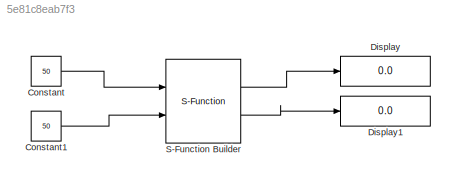
MODEL slx_5e81c8eab7f3
KIND model
CONFIG AbsTol = auto
CONFIG EnableMultiTasking = off
CONFIG FixedStep = auto
CONFIG MaxStep = auto
CONFIG MinStep = auto
CONFIG RelTol = 1e-3
CONFIG SampleTimeConstraint = Unconstrained
CONFIG Solver = VariableStepAuto
CONFIG SolverName = VariableStepAuto
CONFIG StartTime = 0.0
CONFIG StopTime = 10.0
BLOCK [Constant] Constant
  Value = 50
BLOCK [Constant] Constant1
  Value = 50
BLOCK [Display] Display
  Decimation = 1
  Ports = [1]
BLOCK [Display] Display1
  Decimation = 1
  Ports = [1]
BLOCK [S-Function] S-Function Builder
  CopyFcn = set_param(gcbh,'LinkStatus','none')
  EnableBusSupport = off
  FunctionName = SfuncA3__007
  InitFcn = try, set_param(gcb,'FunctionName','SfuncA3__007'), end
  OpenFcn = sfunctionwizard(gcbh)
  Ports = [2, 2]
  PreSaveFcn = try, set_param(gcb,'FunctionName','SfuncA3__007'), end
  SFcnIsStateOwnerBlock = off
  SFunctionDeploymentMode = off
  SFunctionModules = SfuncA3__007_wrapper
LINE Constant1:1 -> S-Function Builder:2
LINE Constant:1 -> S-Function Builder:1
LINE S-Function Builder:1 -> Display:1
LINE S-Function Builder:2 -> Display1:1
